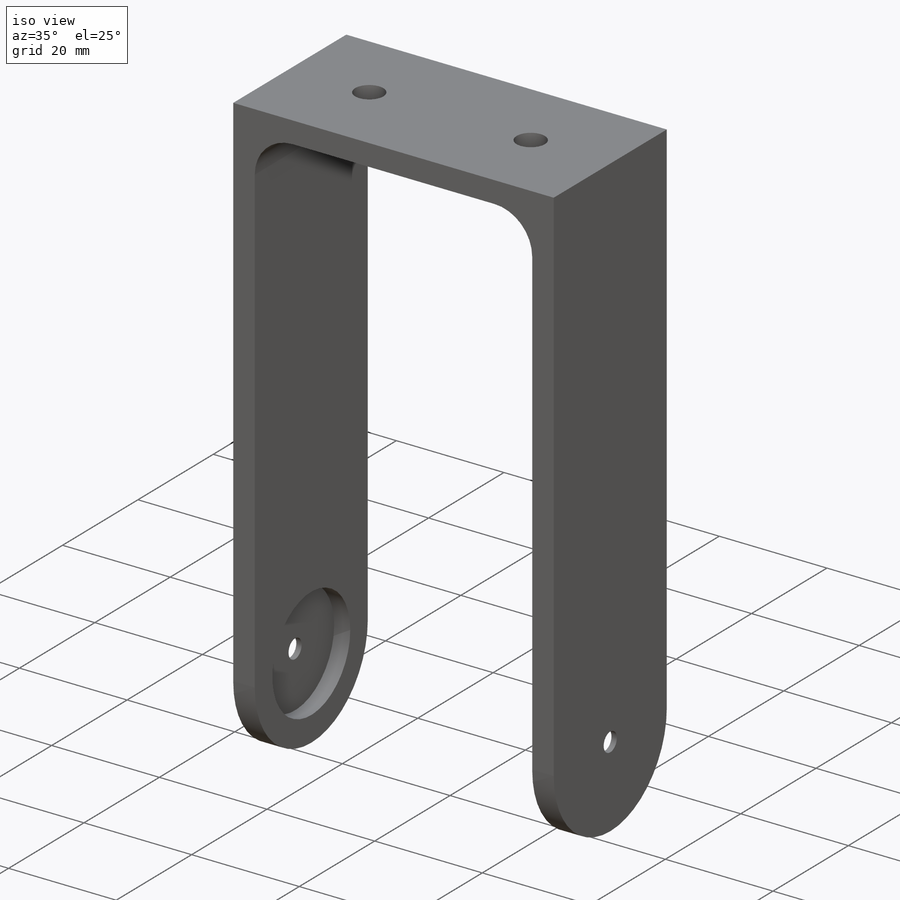
[diagram: iso view]
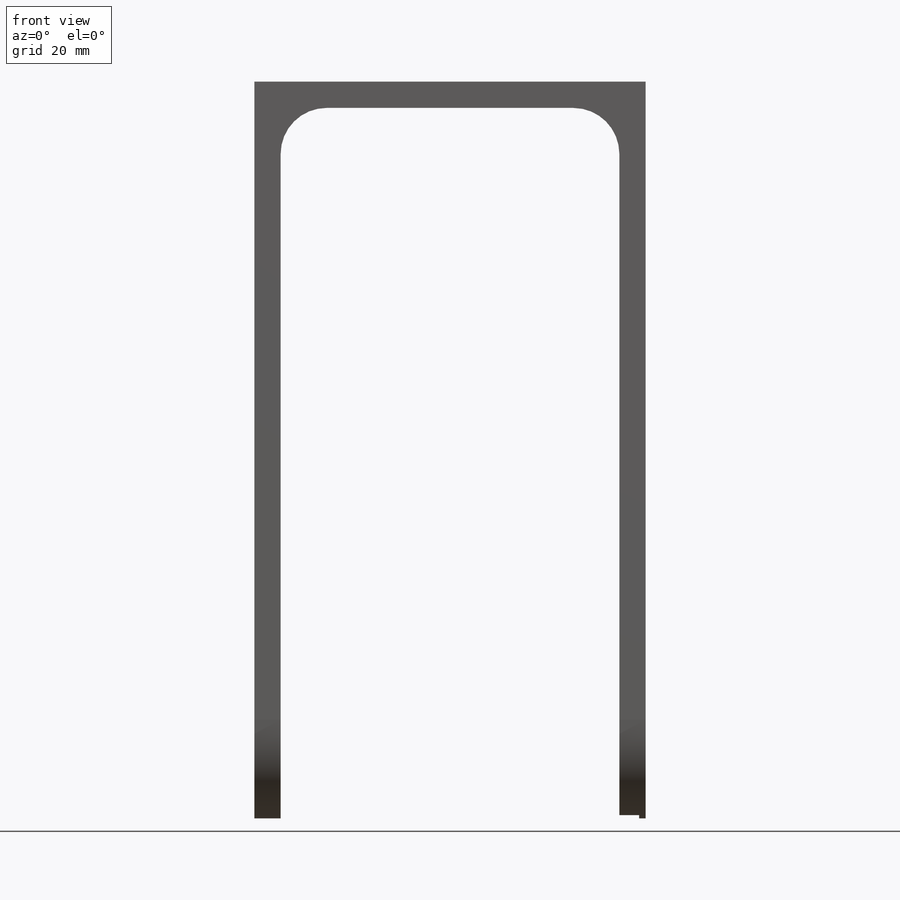
[diagram: front view]
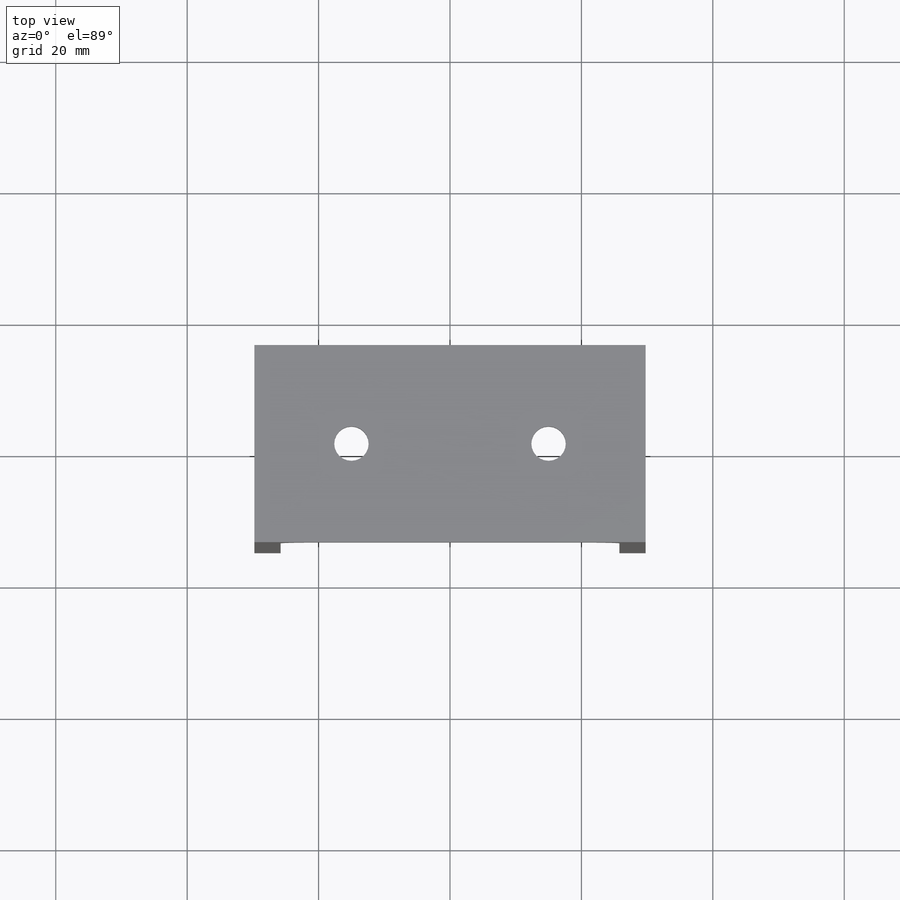
[diagram: top view]
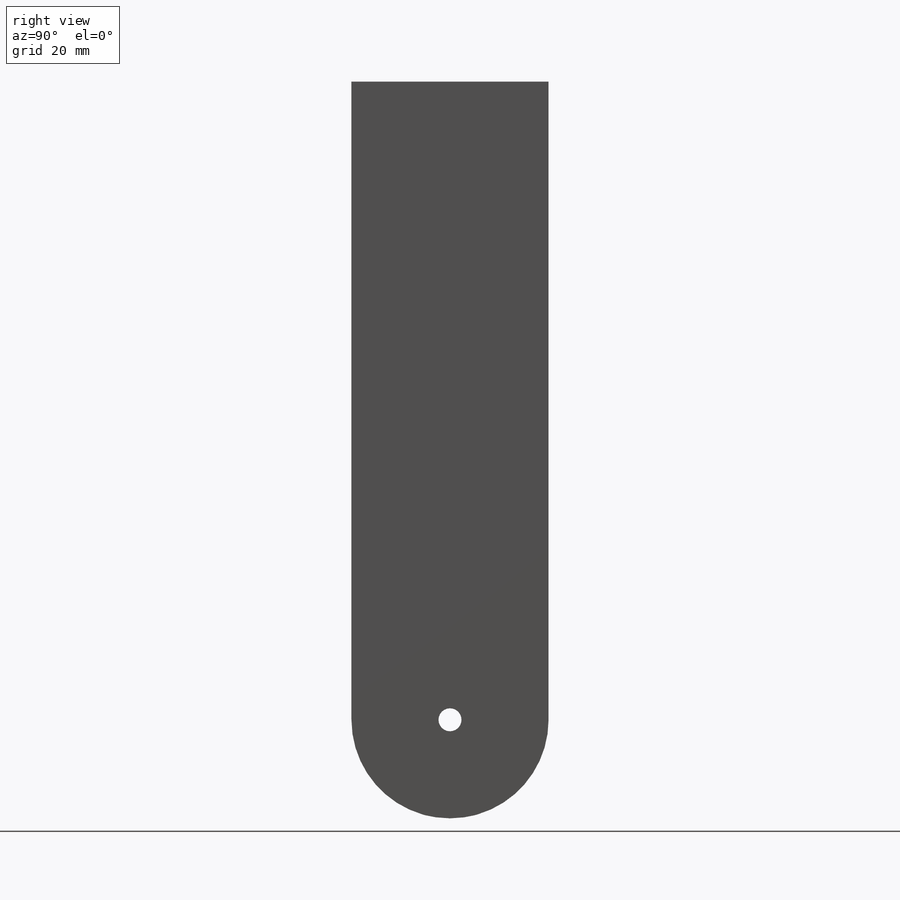
[diagram: right view]
SOLIDWORKS PART (.sldprt)
format: sldprt  version: not decoded by parser v0  size: 440,832 bytes
history: native  units: mm
features: sketch x6, cut_extrude x5, plane x3, fillet x2, material x1 (+10 scaffold rows collapsed)
feature tree (27):
  scaffold x10  (default folders/planes/origin — collapsed)
  material  "材质 <未指定>"
  plane  "前视基准面"
  plane  "上视基准面"
  plane  "右视基准面"
  sketch  "草图1"  dims[c1.D1=1.5mm c2.D1=30.0mm c2.D5=4.0mm c2.D6=1.0mm c2.D7=5.0mm]
  sketch  "草图2"  dims[c1.D1=30.0mm c2.D1=2.0]
  cut_extrude  "切除-拉伸1"  Depth=30mm
  sketch  "草图4"  dims[D1=0.3mm]
  cut_extrude  "切除-拉伸2"  Depth=3mm
  sketch  "草图5"  dims[D1=~18.320716mm]
  cut_extrude  "切除-拉伸3"  Depth=3mm
  sketch  "草图6"  dims[D1=3.5mm]
  cut_extrude  "切除-拉伸4"  Depth=73mm
  fillet  "圆角1"  Radius=7mm
  fillet  "圆角2"  Radius=15mm
  sketch  "草图7"  dims[D1=0.0mm]
  cut_extrude  "切除-拉伸5"  Depth=80mm
decode coverage: 13 of 13 modeling features carry decoded parameters
note: ~ marks probable driven/reference dimensions
note: suppression state not decoded; provenance and decode notes live in map.json
